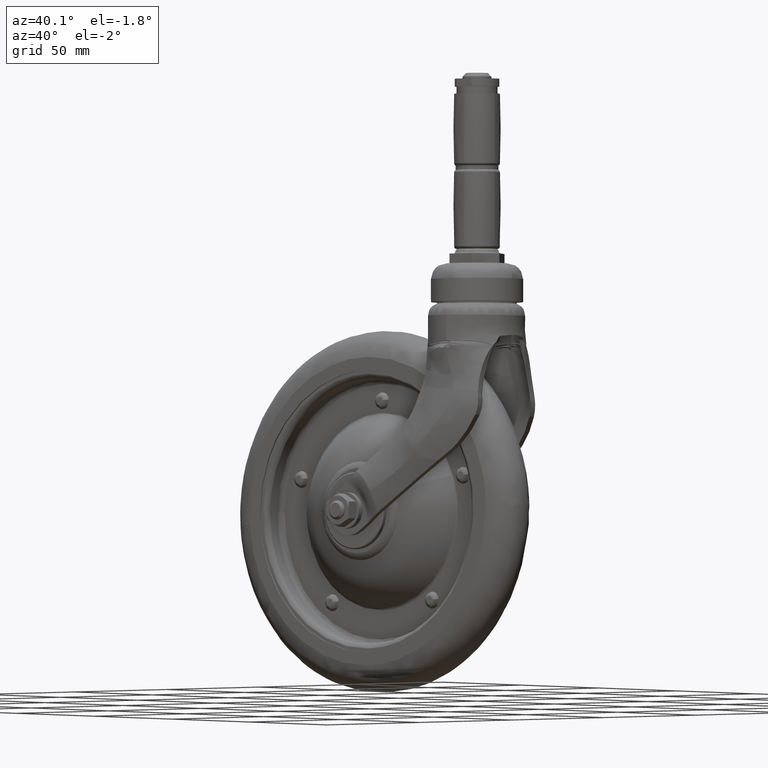
[diagram: clean part render]
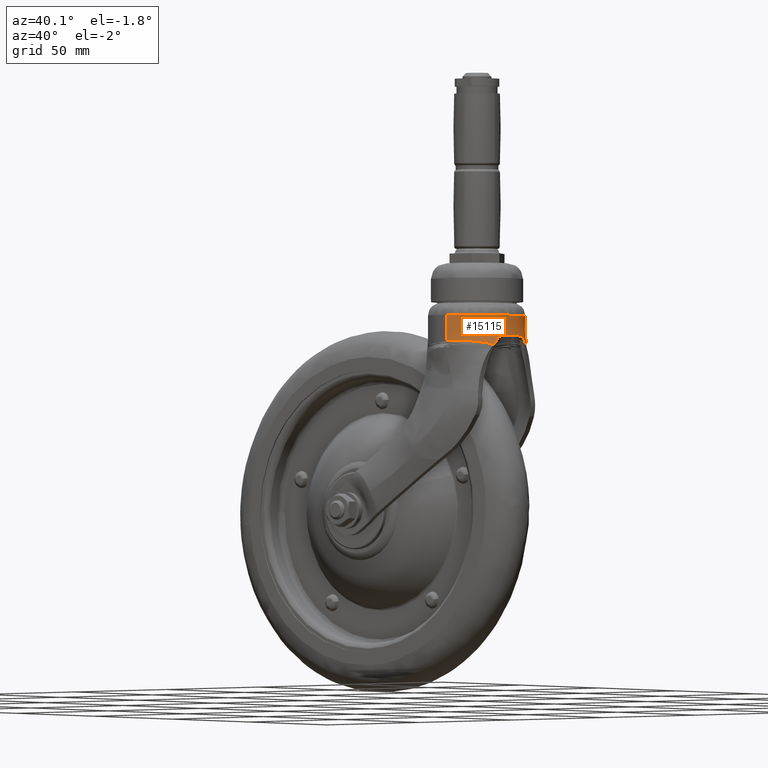
[diagram: same view with one face highlighted and labeled with its STEP entity id]
A machine part, auxiliary view. The second image highlights one B-rep face of the part: STEP entity #15115.
In plain terms, the highlighted face is a freeform B-spline surface patch.
Its self-contained STEP definition (entity closure, byte-faithful):
#14590=CARTESIAN_POINT('',(50.340205215909812,-20.164291189069711,80.257456617676269));
#14591=VERTEX_POINT('',#14590);
#14597=CARTESIAN_POINT('',(64.937438830995802,13.271315559980600,80.148061692414160));
#14598=VERTEX_POINT('',#14597);
#14599=CARTESIAN_POINT('',(64.937438830995802,13.271315559980600,80.148061692414160));
#14600=CARTESIAN_POINT('',(66.147673526884347,11.885998205684860,80.138966867809174));
#14601=CARTESIAN_POINT('',(67.855864971138502,9.281922281125194,80.126126024964236));
#14602=CARTESIAN_POINT('',(69.333233474825491,5.253610542652695,80.115009623598567));
#14603=CARTESIAN_POINT('',(69.980746266181754,1.496596633264160,80.110125436950099));
#14604=CARTESIAN_POINT('',(69.909312413314524,-2.260273983666945,80.110639122478290));
#14605=CARTESIAN_POINT('',(69.057746462313446,-6.281372864344443,80.117008468955561));
#14606=CARTESIAN_POINT('',(67.552163815594938,-9.729789779347074,80.128291642319923));
#14607=CARTESIAN_POINT('',(65.263030514064994,-13.066335165648381,80.145458409921631));
#14608=CARTESIAN_POINT('',(62.473707102677579,-15.849111617296000,80.166383956158043));
#14609=CARTESIAN_POINT('',(58.902289973425759,-18.128126326450630,80.193184519748570));
#14610=CARTESIAN_POINT('',(54.837180340003208,-19.681901551150251,80.223696111172572));
#14611=CARTESIAN_POINT('',(51.941553811576931,-20.116896634880110,80.245433933721230));
#14612=CARTESIAN_POINT('',(50.340205215909812,-20.164291189069711,80.257456617676269));
#14613=B_SPLINE_CURVE_WITH_KNOTS('',3,(#14599,#14600,#14601,#14602,#14603,#14604,#14605,#14606,#14607,#14608,#14609,#14610,#14611,#14612),.UNSPECIFIED.,.F.,.U.,(4,1,1,1,1,1,1,1,1,1,1,4),(0.000000385680011,5.518358830955528,9.256627440626971,12.816885009216611,16.911183938312011,20.471514765096881,25.099623042865531,28.125907550205461,32.576224616173683,36.848541379366523,40.764878612763241,45.571126163318560),.UNSPECIFIED.);
#14614=EDGE_CURVE('',#14598,#14591,#14613,.T.);
#14916=CARTESIAN_POINT('',(64.845998151938019,13.474125025600859,80.992014157390742));
#14917=CARTESIAN_POINT('',(66.234951853221773,11.917713887113660,81.005857986178384));
#14918=CARTESIAN_POINT('',(68.840805788477169,7.900983477625124,81.031841773313573));
#14919=CARTESIAN_POINT('',(70.508552316230720,0.569570510213388,81.048519156943968));
#14920=CARTESIAN_POINT('',(69.150284557765161,-7.402925845422477,81.035076427551246));
#14921=CARTESIAN_POINT('',(64.847186903314764,-14.248442071811249,80.992304107396819));
#14922=CARTESIAN_POINT('',(58.190618439476147,-18.969380985536269,80.926079670887319));
#14923=CARTESIAN_POINT('',(52.849960559596397,-20.155303528016319,80.872920779242136));
#14924=CARTESIAN_POINT('',(50.132143373304793,-20.200138987654611,80.845863048719323));
#14925=CARTESIAN_POINT('',(64.520452613720238,13.322540076095960,76.772352976827278));
#14926=CARTESIAN_POINT('',(65.892911930962370,11.783565652150010,76.796711767346565));
#14927=CARTESIAN_POINT('',(68.467797739699407,7.811858157374581,76.842431318461053));
#14928=CARTESIAN_POINT('',(70.115626724064128,0.562694021850966,76.871775869818478));
#14929=CARTESIAN_POINT('',(68.773293610297245,-7.320287291678616,76.848122836658803));
#14930=CARTESIAN_POINT('',(64.521056937400928,-14.088868910097601,76.772863174421474));
#14931=CARTESIAN_POINT('',(57.943287321376737,-18.756664496871270,76.656338541810541));
#14932=CARTESIAN_POINT('',(52.665904384055750,-19.929151482331669,76.562803273548454));
#14933=CARTESIAN_POINT('',(49.980298792937027,-19.973420219127618,76.515194077333575));
#14934=CARTESIAN_POINT('',(64.486722555451991,13.306622186344160,72.311483774037868));
#14935=CARTESIAN_POINT('',(65.857451962798095,11.769454456483560,72.336942762803687));
#14936=CARTESIAN_POINT('',(68.429081338993456,7.802419631025387,72.384727292490098));
#14937=CARTESIAN_POINT('',(70.074778884503985,0.561815753185293,72.415397192082096));
#14938=CARTESIAN_POINT('',(68.734043085245403,-7.311824299424508,72.390675769823062));
#14939=CARTESIAN_POINT('',(64.487049845980138,-14.072353016420440,72.312016818754145));
#14940=CARTESIAN_POINT('',(57.917449761688147,-18.734557244984401,72.190229104583651));
#14941=CARTESIAN_POINT('',(52.646647215567121,-19.905602105398689,72.092469136531406));
#14942=CARTESIAN_POINT('',(49.964395885057357,-19.949790569012610,72.042709583624472));
#14943=CARTESIAN_POINT('',(65.548409010066607,13.800629694235040,66.943086279707217));
#14944=CARTESIAN_POINT('',(66.972881028627782,12.206520555362030,66.934198430500274));
#14945=CARTESIAN_POINT('',(69.645371238572437,8.092495193888103,66.917516696906588));
#14946=CARTESIAN_POINT('',(71.355762336840925,0.583480912107221,66.906810013082932));
#14947=CARTESIAN_POINT('',(69.962755685778063,-7.582163976622985,66.915440927417180));
#14948=CARTESIAN_POINT('',(65.549612755514232,-14.593542522586780,66.942901805851221));
#14949=CARTESIAN_POINT('',(58.722815786927072,-19.428886617365521,66.985419162237278));
#14950=CARTESIAN_POINT('',(53.245582645155380,-20.643568141436589,67.019548031000355));
#14951=CARTESIAN_POINT('',(50.458263733736132,-20.689504488204449,67.036919498070020));
#14952=B_SPLINE_SURFACE_WITH_KNOTS('',3,3,((#14916,#14925,#14934,#14943),(#14917,#14926,#14935,#14944),(#14918,#14927,#14936,#14945),(#14919,#14928,#14937,#14946),(#14920,#14929,#14938,#14947),(#14921,#14930,#14939,#14948),(#14922,#14931,#14940,#14949),(#14923,#14932,#14941,#14950),(#14924,#14933,#14942,#14951)),.UNSPECIFIED.,.F.,.F.,.U.,(4,1,1,1,1,1,4),(4,4),(0.0,6.416534488292684,14.546264020734229,22.675993553175779,30.805723085617331,38.935452618058882,47.299337039799063),(0.000023202994466,16.857921600341800),.UNSPECIFIED.);
#14953=ORIENTED_EDGE('',*,*,#14614,.T.);
#14954=CARTESIAN_POINT('',(50.486971867608062,-20.380415718325960,69.445954825040928));
#14955=VERTEX_POINT('',#14954);
#14956=CARTESIAN_POINT('',(50.340205215909812,-20.164291189069711,80.257456617676269));
#14957=CARTESIAN_POINT('',(50.228451248968753,-20.000419494975969,76.820232401866491));
#14958=CARTESIAN_POINT('',(50.214133350971622,-19.979608549510932,73.281973948981559));
#14959=CARTESIAN_POINT('',(50.486971867608062,-20.380415718325960,69.445954825040928));
#14960=B_SPLINE_CURVE_WITH_KNOTS('',3,(#14956,#14957,#14958,#14959),.UNSPECIFIED.,.F.,.U.,(4,4),(0.050242147422723,0.148069960885845),.UNSPECIFIED.);
#14961=EDGE_CURVE('',#14591,#14955,#14960,.T.);
#14962=ORIENTED_EDGE('',*,*,#14961,.T.);
#14963=CARTESIAN_POINT('',(67.767447510519190,-10.515371348763800,67.690050709471507));
#14964=VERTEX_POINT('',#14963);
#14965=CARTESIAN_POINT('',(50.486971867608062,-20.380415718325960,69.445954825040928));
#14966=CARTESIAN_POINT('',(50.549332951701771,-20.378440719334669,69.448638469941855));
#14967=CARTESIAN_POINT('',(50.611672618263519,-20.376178240174280,69.451294570311063));
#14968=CARTESIAN_POINT('',(51.076519099122279,-20.357161591096730,69.470855937961176));
#14969=CARTESIAN_POINT('',(51.879842426025512,-20.300422581258520,69.501173820971175));
#14970=CARTESIAN_POINT('',(52.679923589266977,-20.197093641007928,69.519736356567705));
#14971=CARTESIAN_POINT('',(53.478407924828268,-20.070498357638840,69.531712846380302));
#14972=CARTESIAN_POINT('',(53.876851791183192,-19.995568751510358,69.534407459701328));
#14973=CARTESIAN_POINT('',(54.473271600120292,-19.865374101004331,69.534192214181360));
#14974=CARTESIAN_POINT('',(54.671968877256987,-19.818980438774251,69.533422937512739));
#14975=CARTESIAN_POINT('',(55.068516244583932,-19.720245375093221,69.530761677685518));
#14976=CARTESIAN_POINT('',(55.265575192718963,-19.668104097264049,69.528876476653949));
#14977=CARTESIAN_POINT('',(55.853143790824383,-19.503401980736911,69.522150102567778));
#14978=CARTESIAN_POINT('',(56.240051364076223,-19.382579798756709,69.516198983736516));
#14979=CARTESIAN_POINT('',(57.004301232337191,-19.118716404675091,69.505488260429686));
#14980=CARTESIAN_POINT('',(57.381644025445603,-18.975676667050610,69.500723919994428));
#14981=CARTESIAN_POINT('',(57.847245071653759,-18.782530036617128,69.498908355040882));
#14982=CARTESIAN_POINT('',(57.940060885618713,-18.743181914976009,69.498755726703465));
#14983=CARTESIAN_POINT('',(58.125079079373002,-18.663030552869881,69.498971269273554));
#14984=CARTESIAN_POINT('',(58.217274518785672,-18.622193918759780,69.499594604821581));
#14985=CARTESIAN_POINT('',(58.492986802628629,-18.497733472237549,69.500399507887323));
#14986=CARTESIAN_POINT('',(58.675647059741102,-18.412239444027509,69.498927798716480));
#14987=CARTESIAN_POINT('',(59.220212732630017,-18.148263839481519,69.488469295434243));
#14988=CARTESIAN_POINT('',(59.578708023444563,-17.962303783869451,69.473387154000648));
#14989=CARTESIAN_POINT('',(60.286641358182258,-17.570442934624172,69.428182063726780));
#14990=CARTESIAN_POINT('',(60.636080478102819,-17.364544316859831,69.398063744547628));
#14991=CARTESIAN_POINT('',(61.153348144657379,-17.040371799038422,69.343697005333098));
#14992=CARTESIAN_POINT('',(61.324433787144542,-16.929861138190962,69.324070133392610));
#14993=CARTESIAN_POINT('',(61.662097408040466,-16.705129815120859,69.282564112385515));
#14994=CARTESIAN_POINT('',(61.828945476784682,-16.590741859589912,69.260657704316529));
#14995=CARTESIAN_POINT('',(62.323645611257071,-16.241455917813710,69.192401013787205));
#14996=CARTESIAN_POINT('',(62.645666195482313,-16.000455413755780,69.143485408122558));
#14997=CARTESIAN_POINT('',(63.274429819687100,-15.501422557844480,69.044397724184520));
#14998=CARTESIAN_POINT('',(63.581174888278120,-15.243395185918260,68.994211588038766));
#14999=CARTESIAN_POINT('',(64.179245368099188,-14.708884928612679,68.899191876763084));
#15000=CARTESIAN_POINT('',(64.470574765947632,-14.432413505670160,68.854321905476041));
#15001=CARTESIAN_POINT('',(64.789279304164850,-14.109687152973541,68.811560000048658));
#15002=CARTESIAN_POINT('',(64.824562211496968,-14.073639824726040,68.807035437179138));
#15003=CARTESIAN_POINT('',(64.894888521684436,-14.001347045335590,68.797606159349911));
#15004=CARTESIAN_POINT('',(65.000023947009666,-13.892654846579250,68.782691823654346));
#15005=CARTESIAN_POINT('',(65.242878847132133,-13.637284891077400,68.742514726596013));
#15006=CARTESIAN_POINT('',(65.582880197396861,-13.267544370195210,68.669874899951864));
#15007=CARTESIAN_POINT('',(65.847681598693015,-12.966635630564729,68.595942997299488));
#15008=CARTESIAN_POINT('',(66.108973706185822,-12.663213279308319,68.514403614677704));
#15009=CARTESIAN_POINT('',(66.238065178262516,-12.509967969283570,68.469816841378758));
#15010=CARTESIAN_POINT('',(66.616970464803018,-12.050659088750150,68.325898875281922));
#15011=CARTESIAN_POINT('',(66.859405513172575,-11.744002763947030,68.215984100603762));
#15012=CARTESIAN_POINT('',(67.326372368098689,-11.130077022813570,67.971184434373228));
#15013=CARTESIAN_POINT('',(67.550900684387912,-10.822803025681459,67.836303964060377));
#15014=CARTESIAN_POINT('',(67.767447510519190,-10.515371348763800,67.690050709471507));
#15015=B_SPLINE_CURVE_WITH_KNOTS('',3,(#14965,#14966,#14967,#14968,#14969,#14970,#14971,#14972,#14973,#14974,#14975,#14976,#14977,#14978,#14979,#14980,#14981,#14982,#14983,#14984,#14985,#14986,#14987,#14988,#14989,#14990,#14991,#14992,#14993,#14994,#14995,#14996,#14997,#14998,#14999,#15000,#15001,#15002,#15003,#15004,#15005,#15006,#15007,#15008,#15009,#15010,#15011,#15012,#15013,#15014),.UNSPECIFIED.,.F.,.U.,(4,2,1,2,2,2,2,2,2,2,2,2,2,2,2,2,2,2,2,2,1,1,1,2,2,2,4),(0.463911944087770,0.468750000000010,0.500000000000011,0.531250000000012,0.562500000000014,0.578125000000014,0.593750000000014,0.625000000000015,0.656250000000016,0.664062500000016,0.671875000000016,0.687500000000016,0.718750000000016,0.750000000000017,0.765625000000017,0.781250000000017,0.812500000000017,0.843750000000017,0.875000000000017,0.878906250000017,0.882812500000016,0.890625000000015,0.906250000000013,0.921875000000011,0.937500000000009,0.968750000000004,1.0),.UNSPECIFIED.);
#15016=EDGE_CURVE('',#14955,#14964,#15015,.T.);
#15017=ORIENTED_EDGE('',*,*,#15016,.T.);
#15018=CARTESIAN_POINT('',(67.986740945333494,-9.913354807203250,68.250579273237094));
#15019=VERTEX_POINT('',#15018);
#15020=CARTESIAN_POINT('',(67.767447510519190,-10.515371348763800,67.690050709471507));
#15021=CARTESIAN_POINT('',(67.986740945333494,-9.913354807203250,68.250579273237094));
#15022=QUASI_UNIFORM_CURVE('',1,(#15020,#15021),.UNSPECIFIED.,.F.,.U.);
#15023=EDGE_CURVE('',#14964,#15019,#15022,.T.);
#15024=ORIENTED_EDGE('',*,*,#15023,.T.);
#15025=CARTESIAN_POINT('',(68.323474611199501,-8.670598846167041,69.800302472336995));
#15026=VERTEX_POINT('',#15025);
#15027=CARTESIAN_POINT('',(67.986740945333494,-9.913354807203250,68.250579273237094));
#15028=CARTESIAN_POINT('',(68.154003413964617,-9.426201138418470,68.687286473466898));
#15029=CARTESIAN_POINT('',(68.268732240774995,-9.002907389653142,69.214969693892499));
#15030=CARTESIAN_POINT('',(68.323474611199501,-8.670598846167041,69.800302472336995));
#15031=B_SPLINE_CURVE_WITH_KNOTS('',3,(#15027,#15028,#15029,#15030),.UNSPECIFIED.,.F.,.U.,(4,4),(0.000000019530863,2.025769213746614),.UNSPECIFIED.);
#15032=EDGE_CURVE('',#15019,#15026,#15031,.T.);
#15033=ORIENTED_EDGE('',*,*,#15032,.T.);
#15034=CARTESIAN_POINT('',(68.394414237181493,-8.277589676860091,70.483236960355597));
#15035=VERTEX_POINT('',#15034);
#15036=CARTESIAN_POINT('',(68.323474611199501,-8.670598846167041,69.800302472336995));
#15037=CARTESIAN_POINT('',(68.394414237181493,-8.277589676860091,70.483236960355597));
#15038=QUASI_UNIFORM_CURVE('',1,(#15036,#15037),.UNSPECIFIED.,.F.,.U.);
#15039=EDGE_CURVE('',#15026,#15035,#15038,.T.);
#15040=ORIENTED_EDGE('',*,*,#15039,.T.);
#15041=CARTESIAN_POINT('',(68.850895331006910,-6.817072439839940,71.438561934081108));
#15042=VERTEX_POINT('',#15041);
#15043=CARTESIAN_POINT('',(68.394414237181493,-8.277589676860091,70.483236960355597));
#15044=CARTESIAN_POINT('',(68.420675186776876,-8.166146820467169,70.663855583005642));
#15045=CARTESIAN_POINT('',(68.498495764720872,-7.878403431405059,71.004322137702829));
#15046=CARTESIAN_POINT('',(68.662357713712865,-7.359334464667914,71.323379546978799));
#15047=CARTESIAN_POINT('',(68.792672512151952,-6.980941006317885,71.419438699457558));
#15048=CARTESIAN_POINT('',(68.850895331006910,-6.817072439839940,71.438561934081108));
#15049=B_SPLINE_CURVE_WITH_KNOTS('',3,(#15043,#15044,#15045,#15046,#15047,#15048),.UNSPECIFIED.,.F.,.U.,(4,1,1,4),(0.000000228494945,0.641553879178978,1.341405747521723,1.866312067839679),.UNSPECIFIED.);
#15050=EDGE_CURVE('',#15035,#15042,#15049,.T.);
#15051=ORIENTED_EDGE('',*,*,#15050,.T.);
#15052=CARTESIAN_POINT('',(68.850196594925507,6.817563682258690,71.438561934081108));
#15053=VERTEX_POINT('',#15052);
#15054=CARTESIAN_POINT('',(68.850196594925507,6.817563682258690,71.438561934081108));
#15055=CARTESIAN_POINT('',(69.247785242088014,5.660849531471573,71.591295831665548));
#15056=CARTESIAN_POINT('',(69.822168286260720,3.337736583071731,71.811932555638165));
#15057=CARTESIAN_POINT('',(70.079072277919792,-0.218336578197334,71.910567064214746));
#15058=CARTESIAN_POINT('',(69.762897161052607,-3.622623311729506,71.789023078663135));
#15059=CARTESIAN_POINT('',(69.201557082503967,-5.796398605844943,71.573309022540570));
#15060=CARTESIAN_POINT('',(68.850895331006910,-6.817072439839940,71.438561934081108));
#15061=B_SPLINE_CURVE_WITH_KNOTS('',3,(#15054,#15055,#15056,#15057,#15058,#15059,#15060),.UNSPECIFIED.,.F.,.U.,(4,1,1,1,4),(0.000000046893616,3.697887481137826,7.178215736501078,10.658613489205040,13.921452063028530),.UNSPECIFIED.);
#15062=EDGE_CURVE('',#15053,#15042,#15061,.T.);
#15063=ORIENTED_EDGE('',*,*,#15062,.F.);
#15064=CARTESIAN_POINT('',(68.394457475473786,8.278057029439191,70.483276808282795));
#15065=VERTEX_POINT('',#15064);
#15066=CARTESIAN_POINT('',(68.850196594925507,6.817563682258690,71.438561934081108));
#15067=CARTESIAN_POINT('',(68.738392387037194,7.127142377197150,71.404856097578161));
#15068=CARTESIAN_POINT('',(68.546254657360620,7.698119455636462,71.186467895802750));
#15069=CARTESIAN_POINT('',(68.428209901745092,8.126981206491120,70.730760725917960));
#15070=CARTESIAN_POINT('',(68.394457475473786,8.278057029439191,70.483276808282795));
#15071=B_SPLINE_CURVE_WITH_KNOTS('',3,(#15066,#15067,#15068,#15069,#15070),.UNSPECIFIED.,.F.,.U.,(4,1,4),(0.000000240716049,0.992190682872789,1.867747165583986),.UNSPECIFIED.);
#15072=EDGE_CURVE('',#15053,#15065,#15071,.T.);
#15073=ORIENTED_EDGE('',*,*,#15072,.T.);
#15074=CARTESIAN_POINT('',(68.323629422726100,8.671209953444549,69.800240846791993));
#15075=VERTEX_POINT('',#15074);
#15076=CARTESIAN_POINT('',(68.394457475473786,8.278057029439191,70.483276808282795));
#15077=CARTESIAN_POINT('',(68.323629422726100,8.671209953444549,69.800240846791993));
#15078=QUASI_UNIFORM_CURVE('',1,(#15076,#15077),.UNSPECIFIED.,.F.,.U.);
#15079=EDGE_CURVE('',#15065,#15075,#15078,.T.);
#15080=ORIENTED_EDGE('',*,*,#15079,.T.);
#15081=CARTESIAN_POINT('',(67.987008427716304,9.913649733786089,68.251211375921898));
#15082=VERTEX_POINT('',#15081);
#15083=CARTESIAN_POINT('',(68.323629422726100,8.671209953444549,69.800240846791993));
#15084=CARTESIAN_POINT('',(68.273638258965974,9.002745158461186,69.214096059844422));
#15085=CARTESIAN_POINT('',(68.158803527626958,9.426439696971334,68.686026101266251));
#15086=CARTESIAN_POINT('',(67.987008427716304,9.913649733786089,68.251211375921898));
#15087=B_SPLINE_CURVE_WITH_KNOTS('',3,(#15083,#15084,#15085,#15086),.UNSPECIFIED.,.F.,.U.,(4,4),(0.000000021762602,2.025630317441918),.UNSPECIFIED.);
#15088=EDGE_CURVE('',#15075,#15082,#15087,.T.);
#15089=ORIENTED_EDGE('',*,*,#15088,.T.);
#15090=CARTESIAN_POINT('',(67.756984648220211,10.545102883682020,67.660858324988908));
#15091=VERTEX_POINT('',#15090);
#15092=CARTESIAN_POINT('',(67.987008427716304,9.913649733786089,68.251211375921898));
#15093=CARTESIAN_POINT('',(67.756984648220211,10.545102883682020,67.660858324988908));
#15094=QUASI_UNIFORM_CURVE('',1,(#15092,#15093),.UNSPECIFIED.,.F.,.U.);
#15095=EDGE_CURVE('',#15082,#15091,#15094,.T.);
#15096=ORIENTED_EDGE('',*,*,#15095,.T.);
#15097=CARTESIAN_POINT('',(65.387215408191111,13.476188953844041,68.720373751432220));
#15098=VERTEX_POINT('',#15097);
#15099=CARTESIAN_POINT('',(67.756984648220211,10.545102883682020,67.660858324988908));
#15100=CARTESIAN_POINT('',(67.057879535055918,11.549436203743751,68.122150637248112));
#15101=CARTESIAN_POINT('',(66.261545680601301,12.534343365250431,68.478134578698402));
#15102=CARTESIAN_POINT('',(65.387215408191111,13.476188953844041,68.720373751432220));
#15103=B_SPLINE_CURVE_WITH_KNOTS('',3,(#15099,#15100,#15101,#15102),.UNSPECIFIED.,.F.,.U.,(4,4),(2.561781E-009,3.923245803418807),.UNSPECIFIED.);
#15104=EDGE_CURVE('',#15091,#15098,#15103,.T.);
#15105=ORIENTED_EDGE('',*,*,#15104,.T.);
#15106=CARTESIAN_POINT('',(64.937438830995802,13.271315559980600,80.148061692414160));
#15107=CARTESIAN_POINT('',(64.636883450948730,13.133938498379271,76.338815928409915));
#15108=CARTESIAN_POINT('',(64.788373698730325,13.202942237940359,72.486856246978121));
#15109=CARTESIAN_POINT('',(65.387215408191111,13.476188953844041,68.720373751432220));
#15110=B_SPLINE_CURVE_WITH_KNOTS('',3,(#15106,#15107,#15108,#15109),.UNSPECIFIED.,.F.,.U.,(4,4),(3.094804E-009,11.470482476903831),.UNSPECIFIED.);
#15111=EDGE_CURVE('',#14598,#15098,#15110,.T.);
#15112=ORIENTED_EDGE('',*,*,#15111,.F.);
#15113=EDGE_LOOP('',(#14953,#14962,#15017,#15024,#15033,#15040,#15051,#15063,#15073,#15080,#15089,#15096,#15105,#15112));
#15114=FACE_OUTER_BOUND('',#15113,.T.);
#15115=ADVANCED_FACE('',(#15114),#14952,.T.);